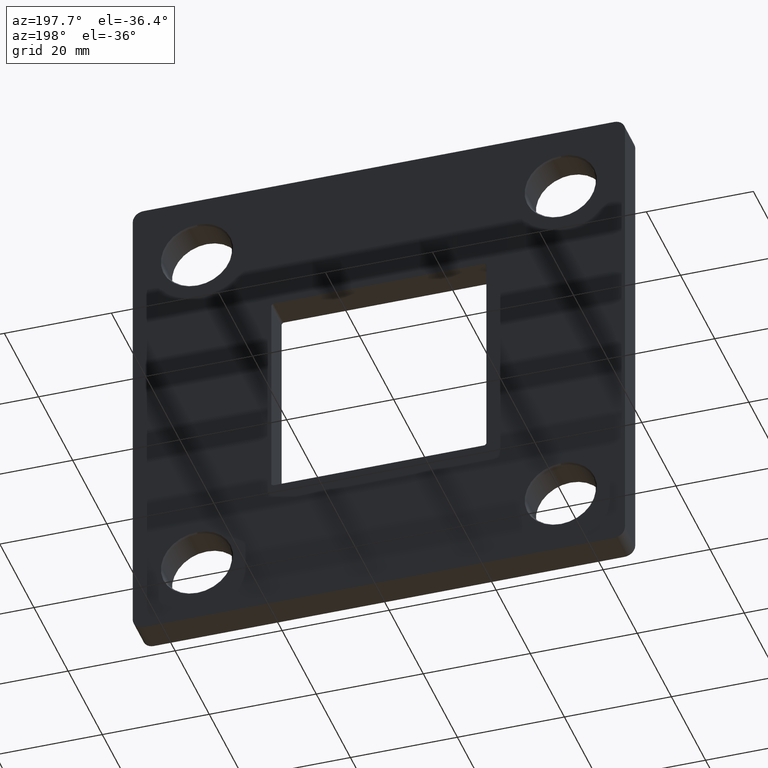
[diagram: clean part render]
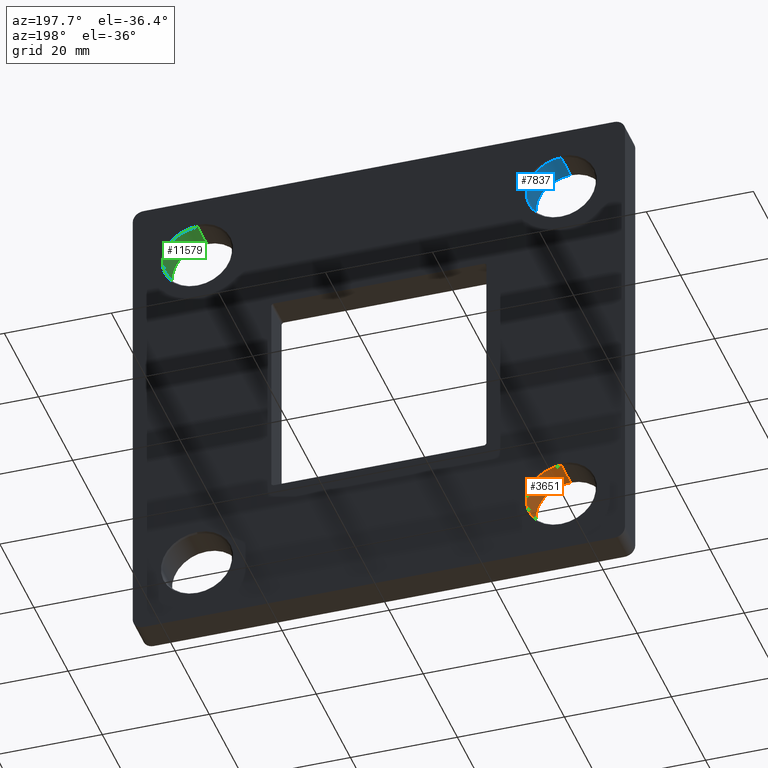
[diagram: same view with three faces highlighted in distinct colors, each labeled with its STEP entity id]
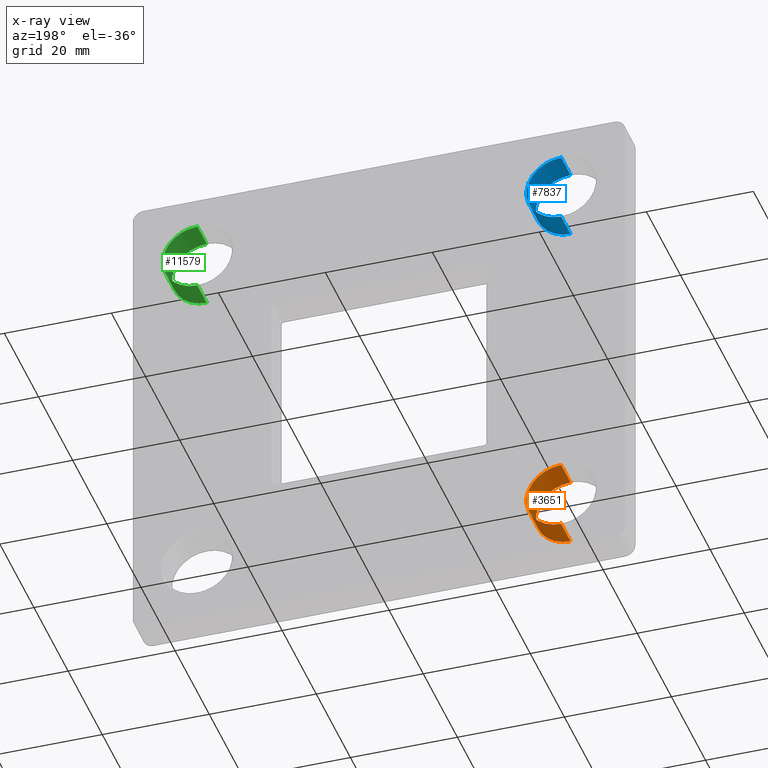
[diagram: x-ray of the same camera — body ghosted, the three highlighted faces saturated]
A machine part, auxiliary view with three faces highlighted in distinct colors.
The next image is the same camera in x-ray (body ghosted, the three faces saturated) — at least one of them is partly hidden behind the body in this view.
Their STEP definitions:

[orange] entity #3651 — the highlighted cylindrical surface (edge-blend (fillet) strip) has radius 6.5 mm, axis along (-0, 1, -0).
#864 = DIRECTION ( 'NONE',  ( -0.000000000000000000, 1.000000000000000000, -0.000000000000000000 ) ) ;
#918 = CARTESIAN_POINT ( 'NONE',  ( -34.00000000000000000, 0.000000000000000000, -40.50000000000000000 ) ) ;
#1474 = VERTEX_POINT ( 'NONE', #2070 ) ;
#1805 = LINE ( 'NONE', #918, #10817 ) ;
#2070 = CARTESIAN_POINT ( 'NONE',  ( -34.00000000000000000, 0.2500000000000132672, -40.50000000000000000 ) ) ;
#2436 = AXIS2_PLACEMENT_3D ( 'NONE', #12500, #12668, #7739 ) ;
#2558 = CIRCLE ( 'NONE', #14457, 6.499999999999999112 ) ;
#2871 = CARTESIAN_POINT ( 'NONE',  ( -34.00000000000000000, 0.2500000000000132672, -27.50000000000000355 ) ) ;
#3036 = DIRECTION ( 'NONE',  ( 0.000000000000000000, 1.000000000000000000, 0.000000000000000000 ) ) ;
#3179 = VERTEX_POINT ( 'NONE', #2871 ) ;
#3651 = ADVANCED_FACE ( 'NONE', ( #5285 ), #11817, .F. ) ;
#3987 = CARTESIAN_POINT ( 'NONE',  ( -34.00000000000000000, 5.750000000000000888, -27.50000000000000355 ) ) ;
#4002 = EDGE_CURVE ( 'NONE', #1474, #3179, #2558, .T. ) ;
#4266 = AXIS2_PLACEMENT_3D ( 'NONE', #6640, #3036, #14067 ) ;
#4301 = LINE ( 'NONE', #8636, #7752 ) ;
#4591 = EDGE_CURVE ( 'NONE', #3179, #13338, #4301, .T. ) ;
#4929 = ORIENTED_EDGE ( 'NONE', *, *, #15058, .T. ) ;
#5285 = FACE_OUTER_BOUND ( 'NONE', #8788, .T. ) ;
#5655 = ORIENTED_EDGE ( 'NONE', *, *, #4591, .T. ) ;
#6315 = DIRECTION ( 'NONE',  ( -0.000000000000000000, 1.000000000000000000, -0.000000000000000000 ) ) ;
#6522 = CARTESIAN_POINT ( 'NONE',  ( -34.00000000000000000, 5.750000000000000888, -40.50000000000000000 ) ) ;
#6640 = CARTESIAN_POINT ( 'NONE',  ( -34.00000000000000000, 5.750000000000000888, -34.00000000000000000 ) ) ;
#7739 = DIRECTION ( 'NONE',  ( 0.000000000000000000, 0.000000000000000000, 1.000000000000000000 ) ) ;
#7752 = VECTOR ( 'NONE', #6315, 1000.000000000000000 ) ;
#7922 = ORIENTED_EDGE ( 'NONE', *, *, #4002, .T. ) ;
#8636 = CARTESIAN_POINT ( 'NONE',  ( -34.00000000000000000, 0.000000000000000000, -27.50000000000000355 ) ) ;
#8788 = EDGE_LOOP ( 'NONE', ( #14191, #7922, #5655, #4929 ) ) ;
#10352 = CIRCLE ( 'NONE', #4266, 6.499999999999999112 ) ;
#10769 = CARTESIAN_POINT ( 'NONE',  ( -34.00000000000000000, 0.2500000000000132672, -34.00000000000000000 ) ) ;
#10817 = VECTOR ( 'NONE', #864, 1000.000000000000000 ) ;
#10822 = DIRECTION ( 'NONE',  ( -0.000000000000000000, -1.000000000000000000, -0.000000000000000000 ) ) ;
#11404 = VERTEX_POINT ( 'NONE', #6522 ) ;
#11817 = CYLINDRICAL_SURFACE ( 'NONE', #2436, 6.499999999999999112 ) ;
#12292 = EDGE_CURVE ( 'NONE', #1474, #11404, #1805, .T. ) ;
#12500 = CARTESIAN_POINT ( 'NONE',  ( -34.00000000000000000, 0.000000000000000000, -34.00000000000000000 ) ) ;
#12668 = DIRECTION ( 'NONE',  ( -0.000000000000000000, 1.000000000000000000, -0.000000000000000000 ) ) ;
#13338 = VERTEX_POINT ( 'NONE', #3987 ) ;
#13341 = DIRECTION ( 'NONE',  ( 0.000000000000000000, 0.000000000000000000, 1.000000000000000000 ) ) ;
#14067 = DIRECTION ( 'NONE',  ( 0.000000000000000000, 0.000000000000000000, 1.000000000000000000 ) ) ;
#14191 = ORIENTED_EDGE ( 'NONE', *, *, #12292, .F. ) ;
#14457 = AXIS2_PLACEMENT_3D ( 'NONE', #10769, #10822, #13341 ) ;
#15058 = EDGE_CURVE ( 'NONE', #13338, #11404, #10352, .T. ) ;

[blue] entity #7837 — the highlighted cylindrical surface (edge-blend (fillet) strip) has radius 6.5 mm, axis along (-0, 1, -0).
#73 = CARTESIAN_POINT ( 'NONE',  ( -34.00000000000000000, 5.750000000000000888, 40.50000000000000000 ) ) ;
#209 = CARTESIAN_POINT ( 'NONE',  ( -34.00000000000000000, 0.2500000000000132672, 40.50000000000000000 ) ) ;
#355 = DIRECTION ( 'NONE',  ( 0.000000000000000000, 0.000000000000000000, 1.000000000000000000 ) ) ;
#414 = AXIS2_PLACEMENT_3D ( 'NONE', #11930, #10540, #4527 ) ;
#821 = VECTOR ( 'NONE', #8815, 1000.000000000000000 ) ;
#1539 = EDGE_CURVE ( 'NONE', #12180, #6420, #13751, .T. ) ;
#1893 = DIRECTION ( 'NONE',  ( 0.000000000000000000, 0.000000000000000000, 1.000000000000000000 ) ) ;
#2845 = DIRECTION ( 'NONE',  ( -0.000000000000000000, -1.000000000000000000, -0.000000000000000000 ) ) ;
#3895 = LINE ( 'NONE', #13890, #821 ) ;
#4033 = DIRECTION ( 'NONE',  ( -0.000000000000000000, 1.000000000000000000, -0.000000000000000000 ) ) ;
#4527 = DIRECTION ( 'NONE',  ( 0.000000000000000000, 0.000000000000000000, 1.000000000000000000 ) ) ;
#5267 = DIRECTION ( 'NONE',  ( -0.000000000000000000, 1.000000000000000000, -0.000000000000000000 ) ) ;
#5463 = EDGE_CURVE ( 'NONE', #6420, #9943, #7146, .T. ) ;
#6420 = VERTEX_POINT ( 'NONE', #209 ) ;
#6908 = EDGE_LOOP ( 'NONE', ( #14797, #15637, #11789, #10318 ) ) ;
#7083 = CIRCLE ( 'NONE', #414, 6.499999999999999112 ) ;
#7146 = LINE ( 'NONE', #11483, #13276 ) ;
#7394 = VERTEX_POINT ( 'NONE', #15089 ) ;
#7837 = ADVANCED_FACE ( 'NONE', ( #11897 ), #8254, .F. ) ;
#8150 = AXIS2_PLACEMENT_3D ( 'NONE', #10080, #5267, #1893 ) ;
#8206 = EDGE_CURVE ( 'NONE', #9943, #7394, #7083, .T. ) ;
#8254 = CYLINDRICAL_SURFACE ( 'NONE', #8150, 6.499999999999999112 ) ;
#8302 = AXIS2_PLACEMENT_3D ( 'NONE', #15174, #2845, #355 ) ;
#8815 = DIRECTION ( 'NONE',  ( -0.000000000000000000, 1.000000000000000000, -0.000000000000000000 ) ) ;
#9202 = CARTESIAN_POINT ( 'NONE',  ( -34.00000000000000000, 0.2500000000000132672, 27.50000000000000355 ) ) ;
#9943 = VERTEX_POINT ( 'NONE', #73 ) ;
#10080 = CARTESIAN_POINT ( 'NONE',  ( -34.00000000000000000, 0.000000000000000000, 34.00000000000000000 ) ) ;
#10318 = ORIENTED_EDGE ( 'NONE', *, *, #8206, .T. ) ;
#10540 = DIRECTION ( 'NONE',  ( 0.000000000000000000, 1.000000000000000000, 0.000000000000000000 ) ) ;
#11483 = CARTESIAN_POINT ( 'NONE',  ( -34.00000000000000000, 0.000000000000000000, 40.50000000000000000 ) ) ;
#11789 = ORIENTED_EDGE ( 'NONE', *, *, #5463, .T. ) ;
#11897 = FACE_OUTER_BOUND ( 'NONE', #6908, .T. ) ;
#11930 = CARTESIAN_POINT ( 'NONE',  ( -34.00000000000000000, 5.750000000000000888, 34.00000000000000000 ) ) ;
#12180 = VERTEX_POINT ( 'NONE', #9202 ) ;
#12619 = EDGE_CURVE ( 'NONE', #12180, #7394, #3895, .T. ) ;
#13276 = VECTOR ( 'NONE', #4033, 1000.000000000000000 ) ;
#13751 = CIRCLE ( 'NONE', #8302, 6.499999999999999112 ) ;
#13890 = CARTESIAN_POINT ( 'NONE',  ( -34.00000000000000000, 0.000000000000000000, 27.50000000000000355 ) ) ;
#14797 = ORIENTED_EDGE ( 'NONE', *, *, #12619, .F. ) ;
#15089 = CARTESIAN_POINT ( 'NONE',  ( -34.00000000000000000, 5.750000000000000888, 27.50000000000000355 ) ) ;
#15174 = CARTESIAN_POINT ( 'NONE',  ( -34.00000000000000000, 0.2500000000000132672, 34.00000000000000000 ) ) ;
#15637 = ORIENTED_EDGE ( 'NONE', *, *, #1539, .T. ) ;

[green] entity #11579 — the highlighted cylindrical surface (edge-blend (fillet) strip) has radius 6.5 mm, axis along (-0, 1, -0).
#53 = LINE ( 'NONE', #10826, #11202 ) ;
#612 = EDGE_CURVE ( 'NONE', #9505, #4891, #5521, .T. ) ;
#1839 = EDGE_CURVE ( 'NONE', #9505, #10982, #10871, .T. ) ;
#2101 = DIRECTION ( 'NONE',  ( 0.000000000000000000, 0.000000000000000000, 1.000000000000000000 ) ) ;
#2236 = CARTESIAN_POINT ( 'NONE',  ( 34.00000000000000000, 5.750000000000000888, 40.50000000000000000 ) ) ;
#3422 = ORIENTED_EDGE ( 'NONE', *, *, #4514, .T. ) ;
#4046 = CARTESIAN_POINT ( 'NONE',  ( 34.00000000000000000, 5.750000000000000888, 34.00000000000000000 ) ) ;
#4366 = VECTOR ( 'NONE', #11349, 1000.000000000000000 ) ;
#4514 = EDGE_CURVE ( 'NONE', #4891, #9929, #53, .T. ) ;
#4891 = VERTEX_POINT ( 'NONE', #10967 ) ;
#4979 = CARTESIAN_POINT ( 'NONE',  ( 34.00000000000000000, 0.000000000000000000, 34.00000000000000000 ) ) ;
#5521 = CIRCLE ( 'NONE', #12718, 6.499999999999999112 ) ;
#6366 = ORIENTED_EDGE ( 'NONE', *, *, #1839, .F. ) ;
#6499 = ORIENTED_EDGE ( 'NONE', *, *, #13351, .T. ) ;
#6730 = DIRECTION ( 'NONE',  ( 0.000000000000000000, 1.000000000000000000, 0.000000000000000000 ) ) ;
#6781 = DIRECTION ( 'NONE',  ( 0.000000000000000000, 0.000000000000000000, 1.000000000000000000 ) ) ;
#6994 = DIRECTION ( 'NONE',  ( -0.000000000000000000, -1.000000000000000000, -0.000000000000000000 ) ) ;
#7132 = AXIS2_PLACEMENT_3D ( 'NONE', #4046, #6730, #6781 ) ;
#7600 = FACE_OUTER_BOUND ( 'NONE', #10399, .T. ) ;
#8638 = DIRECTION ( 'NONE',  ( -0.000000000000000000, 1.000000000000000000, -0.000000000000000000 ) ) ;
#9505 = VERTEX_POINT ( 'NONE', #9864 ) ;
#9749 = DIRECTION ( 'NONE',  ( -0.000000000000000000, 1.000000000000000000, -0.000000000000000000 ) ) ;
#9864 = CARTESIAN_POINT ( 'NONE',  ( 34.00000000000000000, 0.2500000000000132672, 27.50000000000000355 ) ) ;
#9929 = VERTEX_POINT ( 'NONE', #2236 ) ;
#10217 = CARTESIAN_POINT ( 'NONE',  ( 34.00000000000000000, 0.000000000000000000, 27.50000000000000355 ) ) ;
#10399 = EDGE_LOOP ( 'NONE', ( #6366, #13322, #3422, #6499 ) ) ;
#10475 = CYLINDRICAL_SURFACE ( 'NONE', #14916, 6.499999999999999112 ) ;
#10826 = CARTESIAN_POINT ( 'NONE',  ( 34.00000000000000000, 0.000000000000000000, 40.50000000000000000 ) ) ;
#10871 = LINE ( 'NONE', #10217, #4366 ) ;
#10967 = CARTESIAN_POINT ( 'NONE',  ( 34.00000000000000000, 0.2500000000000132672, 40.50000000000000000 ) ) ;
#10982 = VERTEX_POINT ( 'NONE', #11744 ) ;
#11202 = VECTOR ( 'NONE', #9749, 1000.000000000000000 ) ;
#11349 = DIRECTION ( 'NONE',  ( -0.000000000000000000, 1.000000000000000000, -0.000000000000000000 ) ) ;
#11579 = ADVANCED_FACE ( 'NONE', ( #7600 ), #10475, .F. ) ;
#11744 = CARTESIAN_POINT ( 'NONE',  ( 34.00000000000000000, 5.750000000000000888, 27.50000000000000355 ) ) ;
#12511 = CIRCLE ( 'NONE', #7132, 6.499999999999999112 ) ;
#12718 = AXIS2_PLACEMENT_3D ( 'NONE', #14415, #6994, #2101 ) ;
#13322 = ORIENTED_EDGE ( 'NONE', *, *, #612, .T. ) ;
#13351 = EDGE_CURVE ( 'NONE', #9929, #10982, #12511, .T. ) ;
#13547 = DIRECTION ( 'NONE',  ( 0.000000000000000000, 0.000000000000000000, 1.000000000000000000 ) ) ;
#14415 = CARTESIAN_POINT ( 'NONE',  ( 34.00000000000000000, 0.2500000000000132672, 34.00000000000000000 ) ) ;
#14916 = AXIS2_PLACEMENT_3D ( 'NONE', #4979, #8638, #13547 ) ;